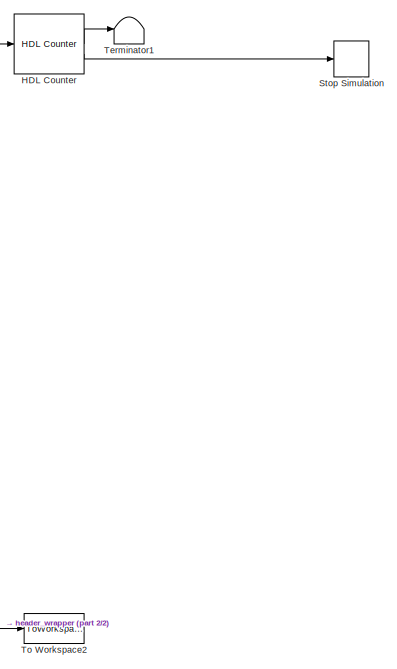
[diagram: root canvas - part 1/2, middle right region]
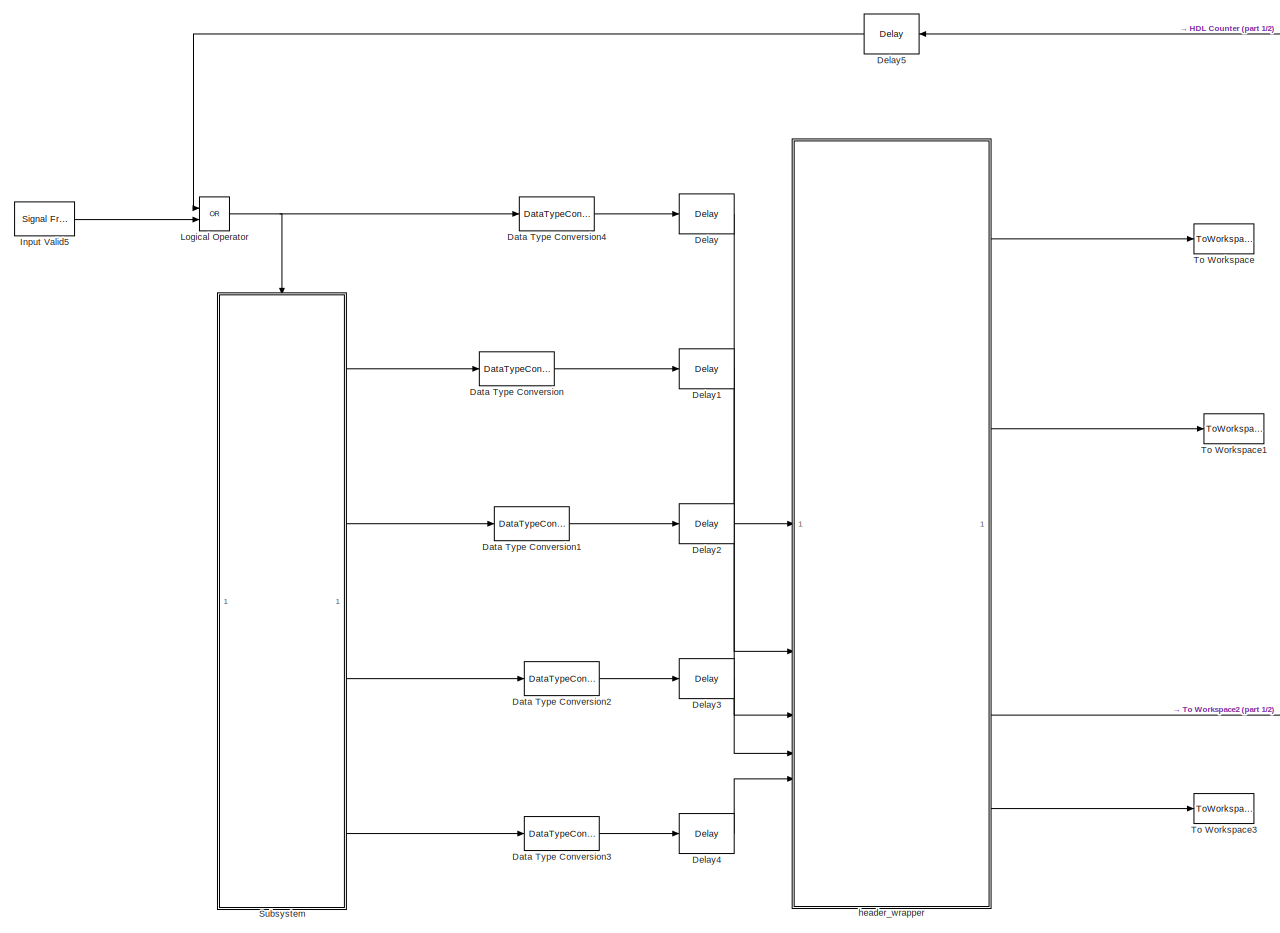
[diagram: root canvas - part 2/2, center side, full height]
MODEL slx_0579c42e92ac
KIND model
CONFIG AbsTol = auto
CONFIG EnableMultiTasking = off
CONFIG FixedStep = auto
CONFIG MaxStep = auto
CONFIG MinStep = auto
CONFIG RelTol = 1e-3
CONFIG SampleTimeConstraint = Unconstrained
CONFIG SolverName = FixedStepDiscrete
CONFIG StartTime = 0.0
CONFIG StopTime = stopTime
BLOCK [DataTypeConversion] Data Type Conversion
  OutDataTypeStr = uint32
  RndMeth = Floor
  SaturateOnIntegerOverflow = off
BLOCK [DataTypeConversion] Data Type Conversion1
  OutDataTypeStr = uint32
  RndMeth = Floor
  SaturateOnIntegerOverflow = off
BLOCK [DataTypeConversion] Data Type Conversion2
  OutDataTypeStr = uint32
  RndMeth = Floor
  SaturateOnIntegerOverflow = off
BLOCK [DataTypeConversion] Data Type Conversion3
  OutDataTypeStr = uint32
  RndMeth = Floor
  SaturateOnIntegerOverflow = off
BLOCK [DataTypeConversion] Data Type Conversion4
  OutDataTypeStr = boolean
  RndMeth = Floor
  SaturateOnIntegerOverflow = off
BLOCK [Delay] Delay
  DelayLength = 1
  InitialCondition = 0
  InputPortMap = u0
  UseCircularBuffer = on
  UserDataPersistent = on
BLOCK [Delay] Delay1
  DelayLength = 1
  InitialCondition = 0
  InputPortMap = u0
  UseCircularBuffer = on
  UserDataPersistent = on
BLOCK [Delay] Delay2
  DelayLength = 1
  InitialCondition = 0
  InputPortMap = u0
  UseCircularBuffer = on
  UserDataPersistent = on
BLOCK [Delay] Delay3
  DelayLength = 1
  InitialCondition = 0
  InputPortMap = u0
  UseCircularBuffer = on
  UserDataPersistent = on
BLOCK [Delay] Delay4
  DelayLength = 1
  InitialCondition = 0
  InputPortMap = u0
  UseCircularBuffer = on
  UserDataPersistent = on
BLOCK [Delay] Delay5
  DelayLength = 100
  InitialCondition = 0
  InputPortMap = u0
  NameLocation = top
  UseCircularBuffer = on
  UserDataPersistent = on
BLOCK [Reference] HDL Counter  REF=hdlsllib/Sources/HDL Counter
  SourceBlock = hdlsllib/Sources/HDL Counter
  SourceType = HDL Counter
BLOCK [Reference] Input Valid5  REF=dspsrcs4/Signal From
Workspace
  SourceBlock = dspsrcs4/Signal From\nWorkspace
  SourceType = Signal From Workspace
BLOCK [Logic] Logical Operator
  AllPortsSameDT = off
  IconShape = distinctive
  Operator = OR
  OutDataTypeStr = boolean
BLOCK [Stop] Stop Simulation
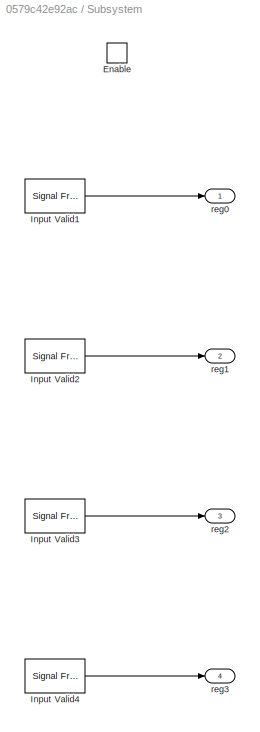
BLOCK [SubSystem] Subsystem
BLOCK [EnablePort] Subsystem/Enable
BLOCK [Reference] Subsystem/Input Valid1  REF=dspsrcs4/Signal From
Workspace
  SourceBlock = dspsrcs4/Signal From\nWorkspace
  SourceType = Signal From Workspace
BLOCK [Reference] Subsystem/Input Valid2  REF=dspsrcs4/Signal From
Workspace
  SourceBlock = dspsrcs4/Signal From\nWorkspace
  SourceType = Signal From Workspace
BLOCK [Reference] Subsystem/Input Valid3  REF=dspsrcs4/Signal From
Workspace
  SourceBlock = dspsrcs4/Signal From\nWorkspace
  SourceType = Signal From Workspace
BLOCK [Reference] Subsystem/Input Valid4  REF=dspsrcs4/Signal From
Workspace
  SourceBlock = dspsrcs4/Signal From\nWorkspace
  SourceType = Signal From Workspace
BLOCK [Outport] Subsystem/reg0
BLOCK [Outport] Subsystem/reg1
  Port = 2
BLOCK [Outport] Subsystem/reg2
  Port = 3
BLOCK [Outport] Subsystem/reg3
  Port = 4
BLOCK [Terminator] Terminator1
BLOCK [ToWorkspace] To Workspace
  MaxDataPoints = inf
  SampleTime = 1/CONST.fs
  Save2DSignal = 2-D array (concatenate along first dimension)
  VariableName = dataOut
BLOCK [ToWorkspace] To Workspace1
  MaxDataPoints = inf
  SampleTime = 1/CONST.fs
  Save2DSignal = 2-D array (concatenate along first dimension)
  VariableName = startOut
BLOCK [ToWorkspace] To Workspace2
  MaxDataPoints = inf
  SampleTime = 1/CONST.fs
  Save2DSignal = 2-D array (concatenate along first dimension)
  VariableName = endOut
BLOCK [ToWorkspace] To Workspace3
  MaxDataPoints = inf
  SampleTime = 1/CONST.fs
  Save2DSignal = 2-D array (concatenate along first dimension)
  VariableName = validOut
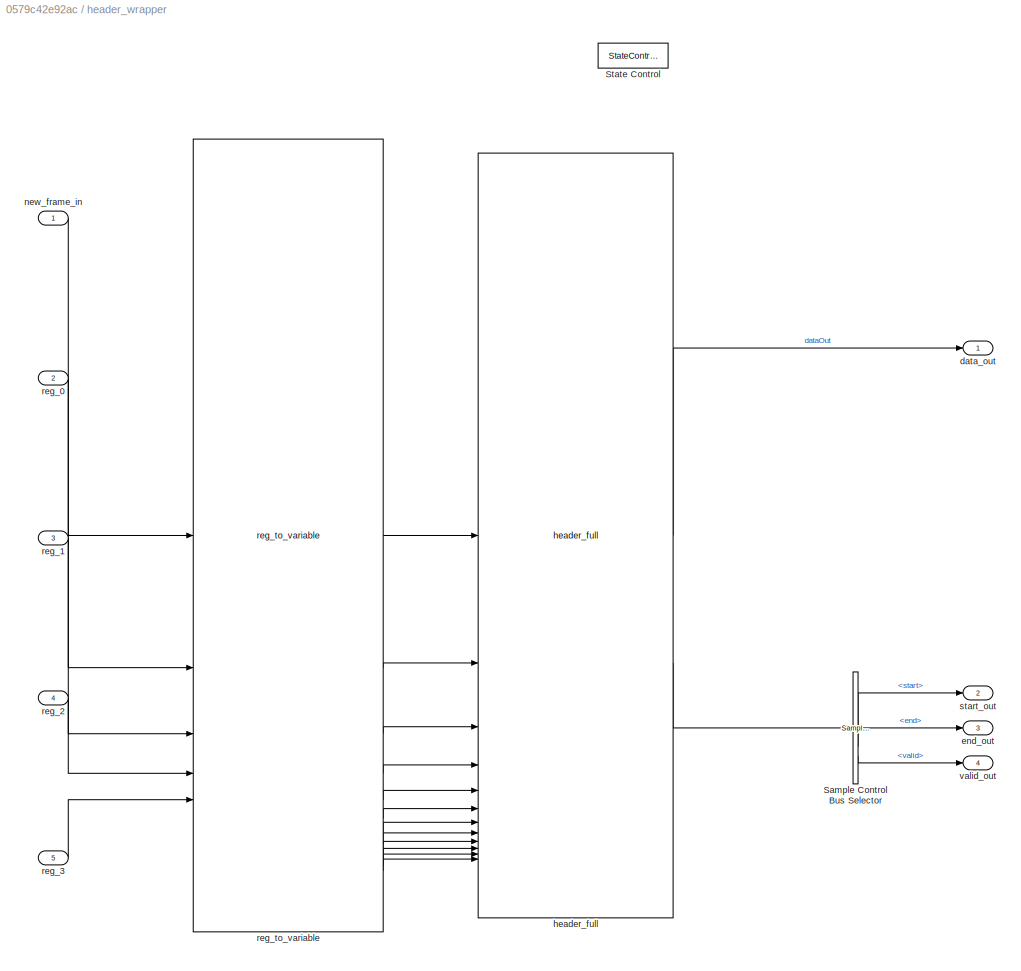
BLOCK [SubSystem] header_wrapper
  TreatAsAtomicUnit = on
BLOCK [Reference] header_wrapper/Sample Control Bus Selector  REF=whdlutilities/Sample Control
Bus Selector
  SourceBlock = whdlutilities/Sample Control\nBus Selector
BLOCK [StateControl] header_wrapper/State Control
  StateControl = Synchronous
BLOCK [Outport] header_wrapper/data_out
BLOCK [Outport] header_wrapper/end_out
  Port = 3
  VectorParamsAs1DForOutWhenUnconnected = off
BLOCK [Reference] header_wrapper/header_full  REF=HDL_ieee_8021513/header_full
  LibrarySourceBlock = hdlsllib/Ports &\nSubsystems/Subsystem
  SourceBlock = HDL_ieee_8021513/header_full
  SourceType = SubSystem
BLOCK [Inport] header_wrapper/new_frame_in
BLOCK [Inport] header_wrapper/reg_0
  Port = 2
BLOCK [Inport] header_wrapper/reg_1
  Port = 3
BLOCK [Inport] header_wrapper/reg_2
  Port = 4
BLOCK [Inport] header_wrapper/reg_3
  Port = 5
BLOCK [Reference] header_wrapper/reg_to_variable  REF=HDL_ieee_8021513/reg_to_variable
  SourceBlock = HDL_ieee_8021513/reg_to_variable
  SourceProductName = HDL IEEE 8021513
  SourceType = SubSystem
BLOCK [Outport] header_wrapper/start_out
  Port = 2
  VectorParamsAs1DForOutWhenUnconnected = off
BLOCK [Outport] header_wrapper/valid_out
  Port = 4
  VectorParamsAs1DForOutWhenUnconnected = off
LINE Data Type Conversion1:1 -> Delay2:1
LINE Data Type Conversion2:1 -> Delay3:1
LINE Data Type Conversion3:1 -> Delay4:1
LINE Data Type Conversion4:1 -> Delay:1
LINE Data Type Conversion:1 -> Delay1:1
LINE Delay1:1 -> header_wrapper:2
LINE Delay2:1 -> header_wrapper:3
LINE Delay3:1 -> header_wrapper:4
LINE Delay4:1 -> header_wrapper:5
LINE Delay5:1 -> Logical Operator:1
LINE Delay:1 -> header_wrapper:1
LINE HDL Counter:1 -> Terminator1:1
LINE HDL Counter:2 -> Stop Simulation:1
LINE Input Valid5:1 -> Logical Operator:2
NET Logical Operator:1 -> Data Type Conversion4:1, Subsystem:enable
LINE Subsystem/Input Valid1:1 -> Subsystem/reg0:1
LINE Subsystem/Input Valid2:1 -> Subsystem/reg1:1
LINE Subsystem/Input Valid3:1 -> Subsystem/reg2:1
LINE Subsystem/Input Valid4:1 -> Subsystem/reg3:1
LINE Subsystem:1 -> Data Type Conversion:1
LINE Subsystem:2 -> Data Type Conversion1:1
LINE Subsystem:3 -> Data Type Conversion2:1
LINE Subsystem:4 -> Data Type Conversion3:1
LINE header_wrapper/Sample Control Bus Selector:1 -> header_wrapper/start_out:1
LINE header_wrapper/Sample Control Bus Selector:2 -> header_wrapper/end_out:1
LINE header_wrapper/Sample Control Bus Selector:3 -> header_wrapper/valid_out:1
LINE header_wrapper/header_full:1 -> header_wrapper/data_out:1
LINE header_wrapper/header_full:2 -> header_wrapper/Sample Control Bus Selector:1
LINE header_wrapper/new_frame_in:1 -> header_wrapper/reg_to_variable:1
LINE header_wrapper/reg_0:1 -> header_wrapper/reg_to_variable:2
LINE header_wrapper/reg_1:1 -> header_wrapper/reg_to_variable:3
LINE header_wrapper/reg_2:1 -> header_wrapper/reg_to_variable:4
LINE header_wrapper/reg_3:1 -> header_wrapper/reg_to_variable:5
LINE header_wrapper/reg_to_variable:1 -> header_wrapper/header_full:1
LINE header_wrapper/reg_to_variable:10 -> header_wrapper/header_full:10
LINE header_wrapper/reg_to_variable:11 -> header_wrapper/header_full:11
LINE header_wrapper/reg_to_variable:12 -> header_wrapper/header_full:12
LINE header_wrapper/reg_to_variable:2 -> header_wrapper/header_full:2
LINE header_wrapper/reg_to_variable:3 -> header_wrapper/header_full:3
LINE header_wrapper/reg_to_variable:4 -> header_wrapper/header_full:4
LINE header_wrapper/reg_to_variable:5 -> header_wrapper/header_full:5
LINE header_wrapper/reg_to_variable:6 -> header_wrapper/header_full:6
LINE header_wrapper/reg_to_variable:7 -> header_wrapper/header_full:7
LINE header_wrapper/reg_to_variable:8 -> header_wrapper/header_full:8
LINE header_wrapper/reg_to_variable:9 -> header_wrapper/header_full:9
LINE header_wrapper:1 -> To Workspace:1
LINE header_wrapper:2 -> To Workspace1:1
NET header_wrapper:3 -> Delay5:1, HDL Counter:1, To Workspace2:1
LINE header_wrapper:4 -> To Workspace3:1
note: NET lines group one-source signal fan-out (src -> all destinations, sorted); 1:1 wires keep LINE
